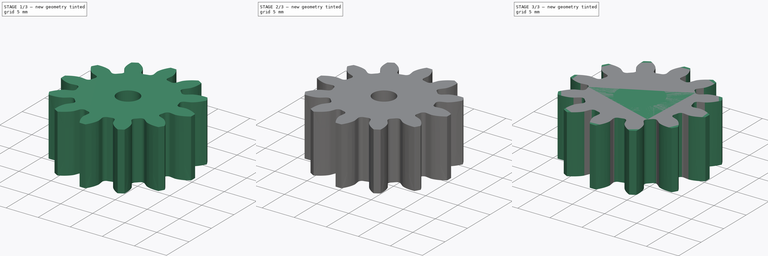
[diagram: build sequence overview — one tinted view per stage of 3, left to right]
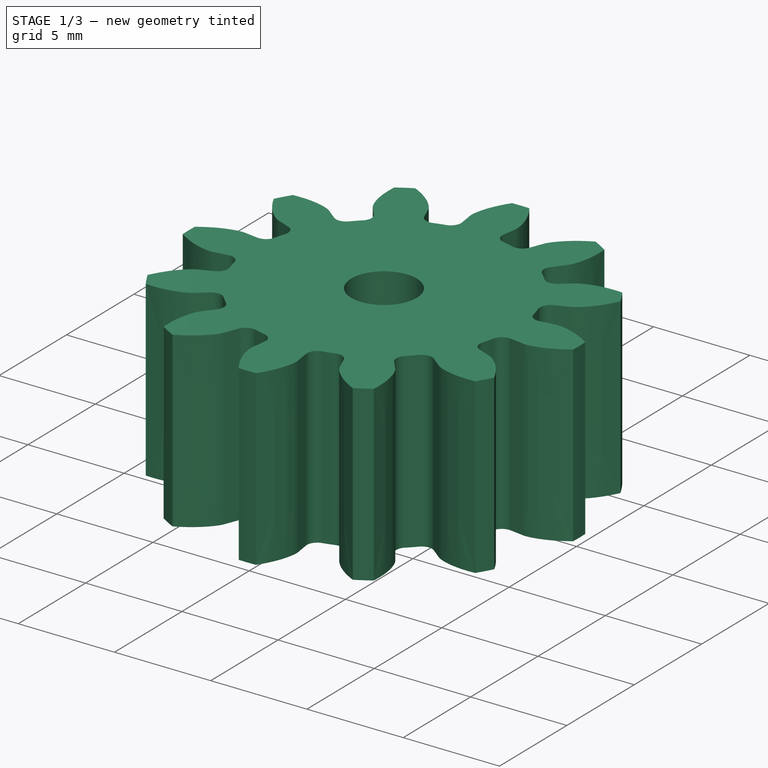
[diagram: stage 1 of 3 — iso view after this stage's code; geometry added in this stage tinted green]
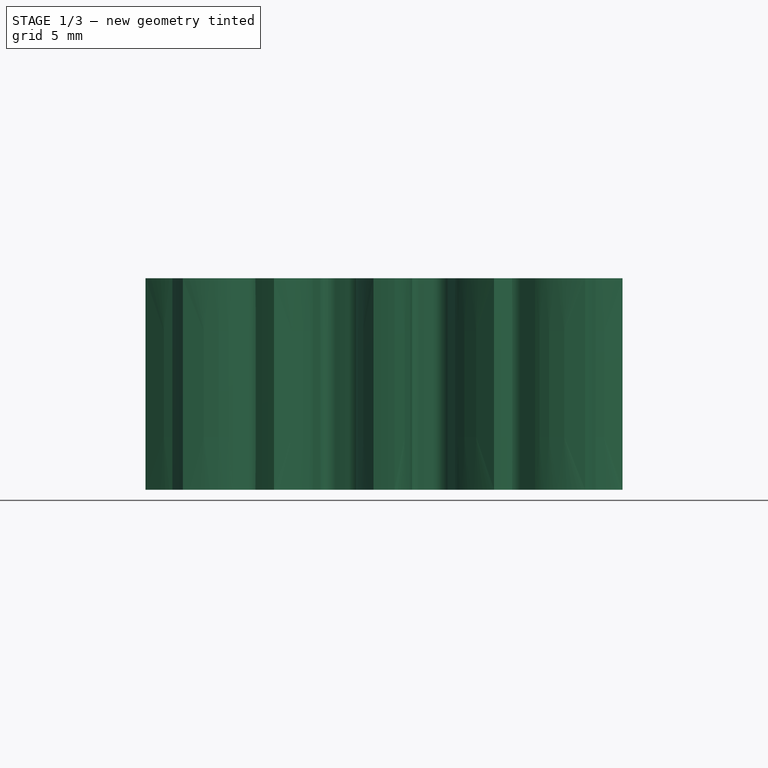
[diagram: stage 1 of 3 — front view after this stage's code; geometry added in this stage tinted green]
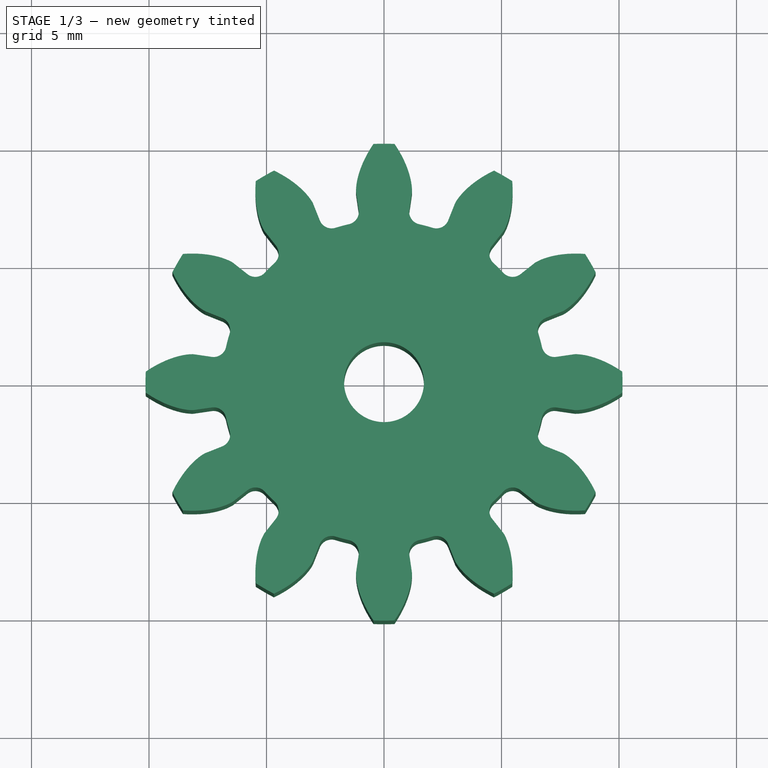
[diagram: stage 1 of 3 — top view after this stage's code; geometry added in this stage tinted green]
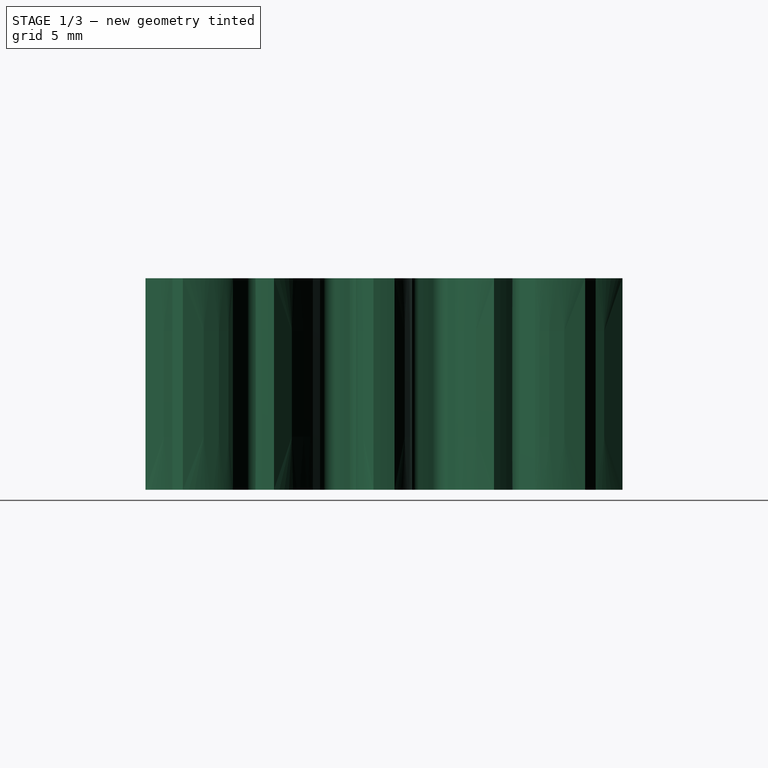
[diagram: stage 1 of 3 — right view after this stage's code; geometry added in this stage tinted green]
FCSTD DOCUMENT  (FreeCAD 0.16R6712 (Git))
Label: SunGearV2_145mod
License: All rights reserved
LicenseURL: http://en.wikipedia.org/wiki/All_rights_reserved
objects: Part::Part2DObjectPython×2, PartDesign::Pad×2, Sketcher::SketchObject×2, PartDesign::Pocket×2, PartDesign::Chamfer×1
note: 13 computed .brp shape members not serialized (recipe doc carries the construction recipe); baked Part::Feature solids carry a one-line shape summary decoded from their .brp

FEATURE [Part::Part2DObjectPython] InvoluteGear001  # Draft 2D object (typed FeaturePython)
  ExternalGear = true
  HighPrecision = false
  Modules = 1.45
  NumberOfTeeth = 12
  PressureAngle = 20
FEATURE [PartDesign::Pad] Pad
  Length = 9
  Length2 = 100
  Reversed = true
  Sketch = -> InvoluteGear001
  Type = 0
FEATURE [Sketcher::SketchObject] Sketch001  label="ScrewHole"
  Placement = pos=(0,0,-9) rot=(1,0,0;3.14159rad)
  Support = -> Pad [Face98]
  sketch-geometry (1):
    g0: Circle CenterX=0 CenterY=0 CenterZ=0 NormalX=0 NormalY=0 NormalZ=1 Radius=1.7
  constraints (2):
    c: Coincident(g0,g-1)
    c: Radius(g0) = 1.7
FEATURE [PartDesign::Pocket] Pocket
  Length = 5
  Sketch = -> Sketch001
  Type = 1
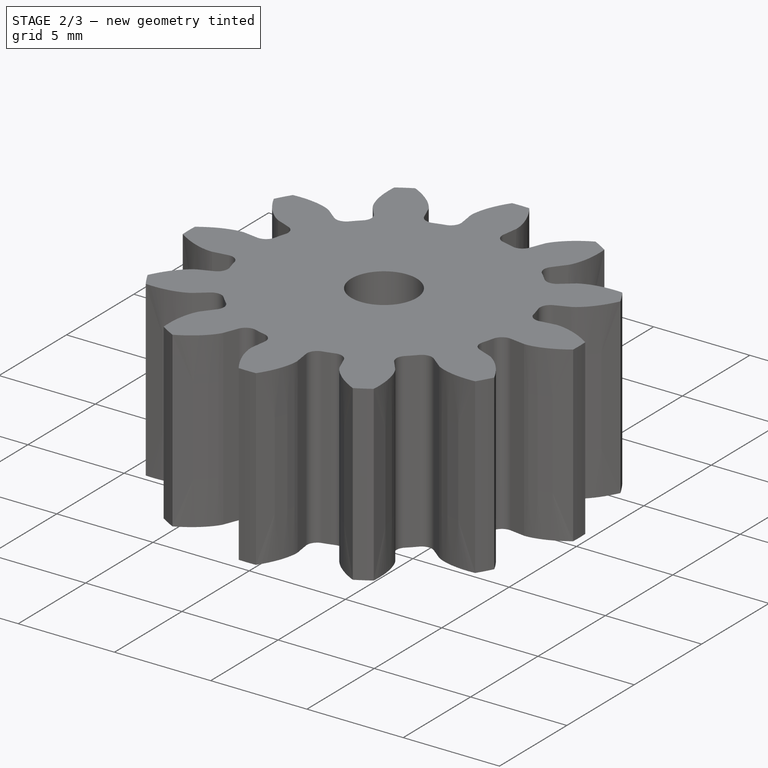
[diagram: stage 2 of 3 — iso view after this stage's code; geometry added in this stage tinted green]
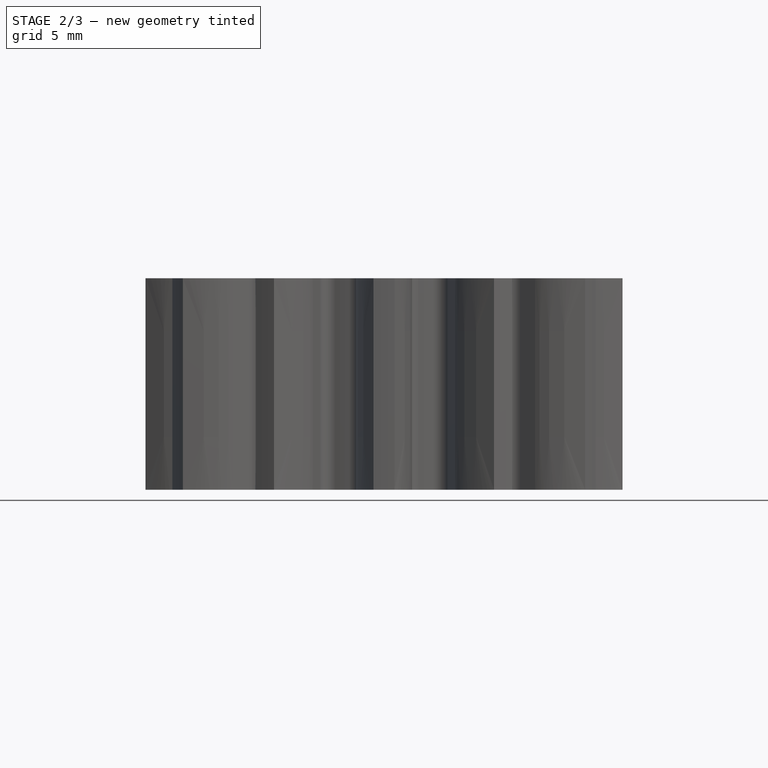
[diagram: stage 2 of 3 — front view after this stage's code; geometry added in this stage tinted green]
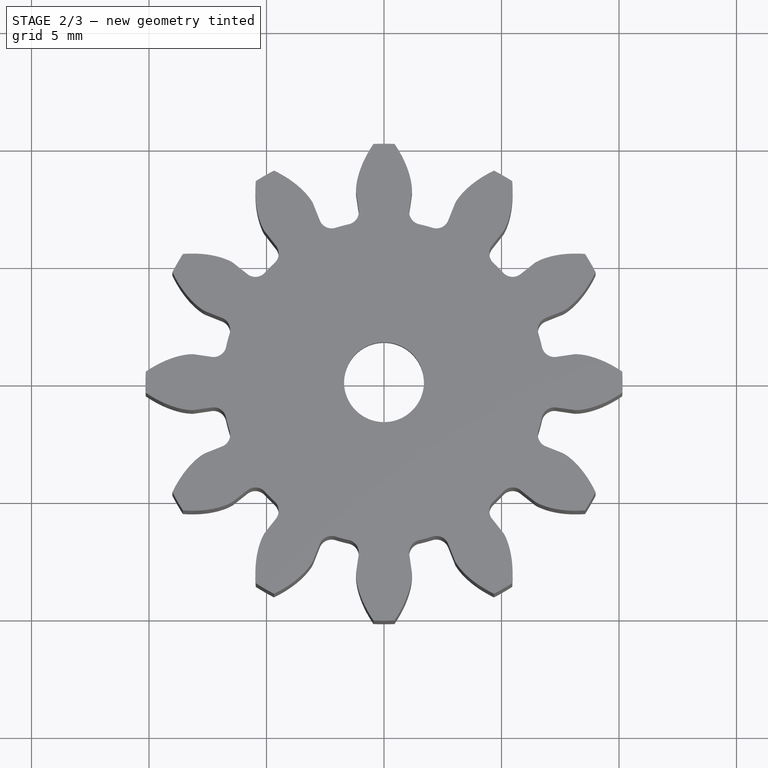
[diagram: stage 2 of 3 — top view after this stage's code; geometry added in this stage tinted green]
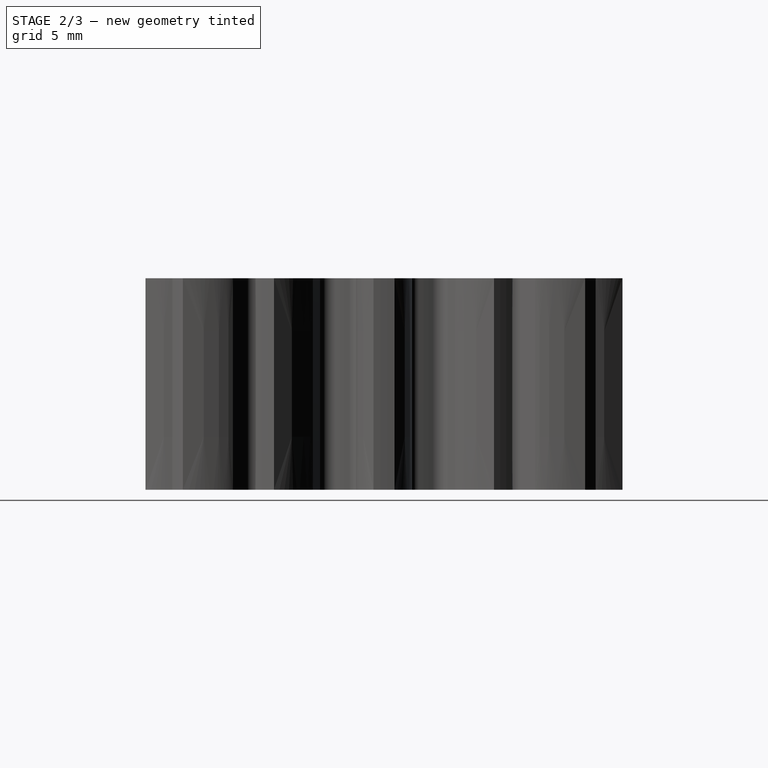
[diagram: stage 2 of 3 — right view after this stage's code; geometry added in this stage tinted green]
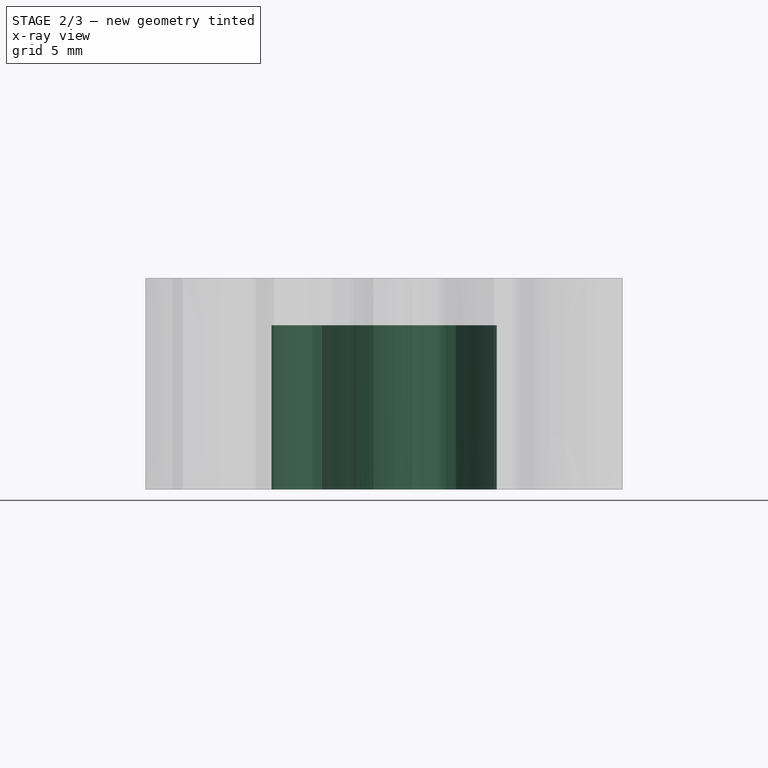
[diagram: stage 2 of 3 — x-ray composite at the front view; earlier geometry ghosted, this stage's added geometry solid]
FEATURE [Sketcher::SketchObject] Sketch005
  Placement = pos=(0,0,-9) rot=(1,0,0;3.14159rad)
  Support = -> Pocket [Face5]
  sketch-geometry (8):
    g0: LineSegment StartX=-3.05778 StartY=3.7 StartZ=0 EndX=-2.63818 EndY=3.7 EndZ=0
    g1: LineSegment StartX=3.05778 StartY=-3.7 StartZ=0 EndX=2.63818 EndY=-3.7 EndZ=0
    g2: ArcOfCircle CenterX=0 CenterY=-6 CenterZ=0 NormalX=0 NormalY=0 NormalZ=1 Radius=3.5 StartAngle=0.717022 EndAngle=2.42457
    g3: ArcOfCircle CenterX=0 CenterY=6 CenterZ=0 NormalX=0 NormalY=0 NormalZ=1 Radius=3.5 StartAngle=3.85861 EndAngle=5.56616
    g4: LineSegment StartX=2.63818 StartY=3.7 StartZ=0 EndX=3.05778 EndY=3.7 EndZ=0
    g5: LineSegment StartX=-2.63818 StartY=-3.7 StartZ=0 EndX=-3.05778 EndY=-3.7 EndZ=0
    g6: ArcOfCircle CenterX=0 CenterY=0 CenterZ=0 NormalX=0 NormalY=0 NormalZ=1 Radius=4.8 StartAngle=5.40304 EndAngle=7.16333
    g7: ArcOfCircle CenterX=0 CenterY=0 CenterZ=0 NormalX=0 NormalY=0 NormalZ=1 Radius=4.8 StartAngle=2.26144 EndAngle=4.02174
  constraints (25):
    c: Horizontal(g0)
    c: Horizontal(g1)
    c: DistanceY(g1,g4) = 7.4
    c: PointOnObject(g2,g-2)
    c: DistanceY(g2,g-1) = 6
    c: Symmetric(g2,g3,g-1)
    c: Tangent(g0,g4)
    c: Tangent(g1,g5)
    c: Coincident(g0,g3)
    c: Coincident(g4,g3)
    c: Coincident(g2,g5)
    c: Coincident(g1,g2)
    c: Coincident(g6,g-1)
    c: Coincident(g7,g-1)
    c: Radius(g6) = 4.8
    c: Equal(g6,g7)
    c: Coincident(g5,g7)
    c: Coincident(g1,g6)
    c: Coincident(g7,g0)
    c: Coincident(g6,g4)
    c: Equal(g5,g0)
    c: Equal(g0,g4)
    c: Equal(g4,g1)
    c: Symmetric(g2,g3,g-1)
    c: Radius(g3) = 3.5
FEATURE [PartDesign::Pocket] Pocket001
  Length = 7
  Sketch = -> Sketch005
  Type = 0
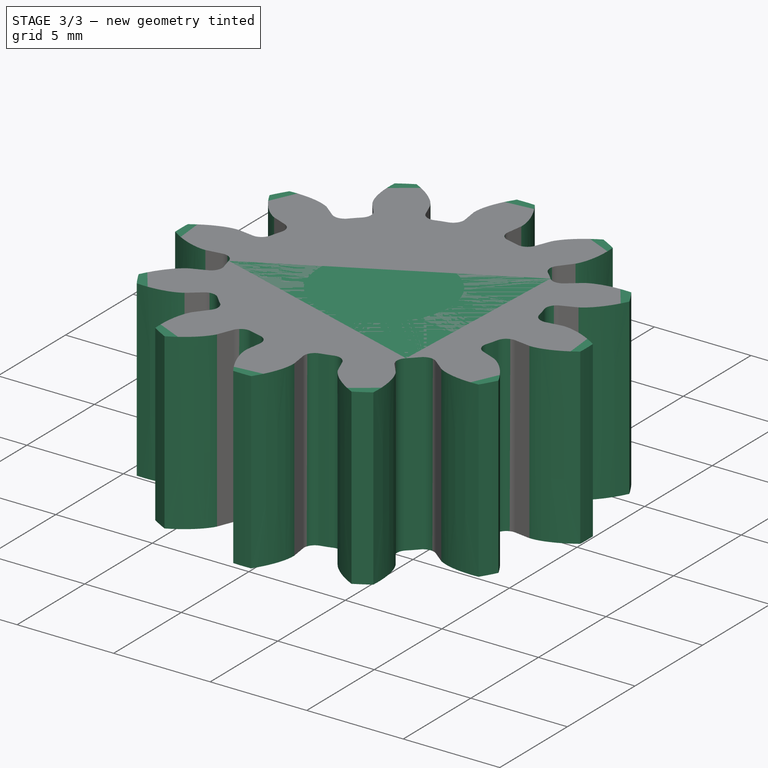
[diagram: stage 3 of 3 — iso view after this stage's code; geometry added in this stage tinted green]
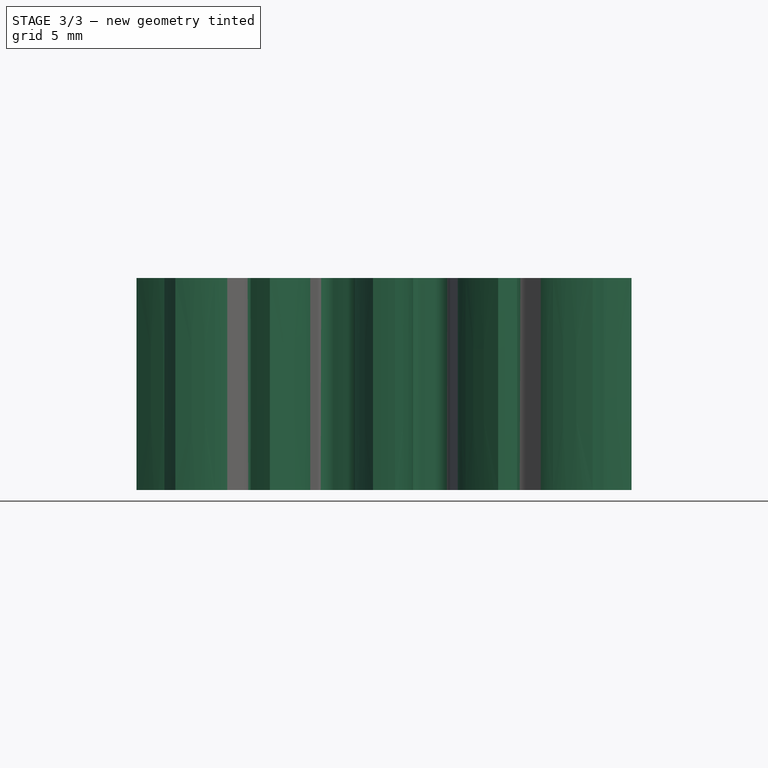
[diagram: stage 3 of 3 — front view after this stage's code; geometry added in this stage tinted green]
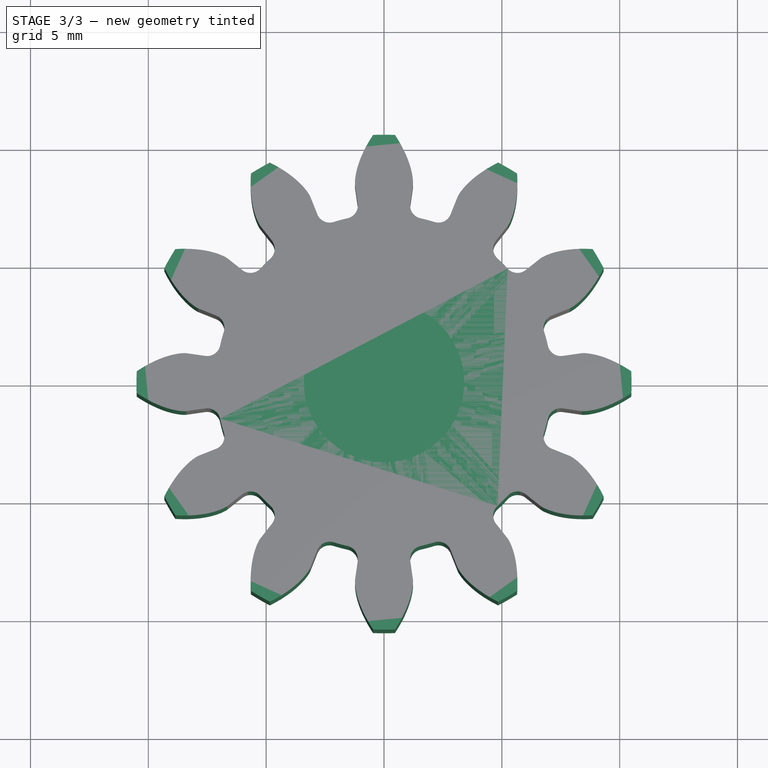
[diagram: stage 3 of 3 — top view after this stage's code; geometry added in this stage tinted green]
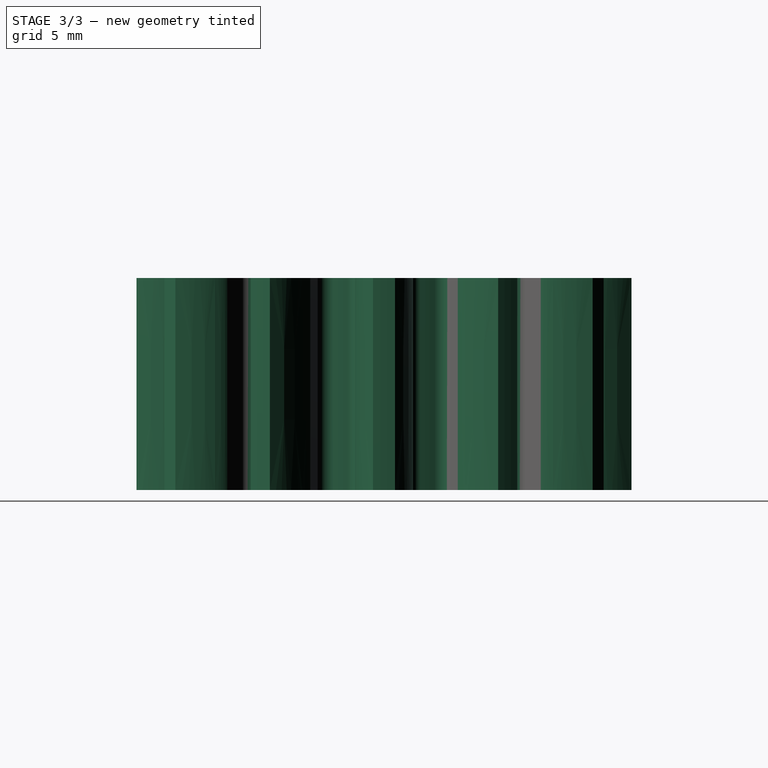
[diagram: stage 3 of 3 — right view after this stage's code; geometry added in this stage tinted green]
FEATURE [Part::Part2DObjectPython] InvoluteGear  # Draft 2D object (typed FeaturePython)
  ExternalGear = true
  HighPrecision = true
  Modules = 1.45
  NumberOfTeeth = 12
  PressureAngle = 20
FEATURE [PartDesign::Pad] Pad001
  Length = 9
  Length2 = 100
  Reversed = true
  Sketch = -> InvoluteGear
  Type = 0
FEATURE [PartDesign::Chamfer] Chamfer
  Base = -> Pocket001 [Edge128]
  Size = 1.7
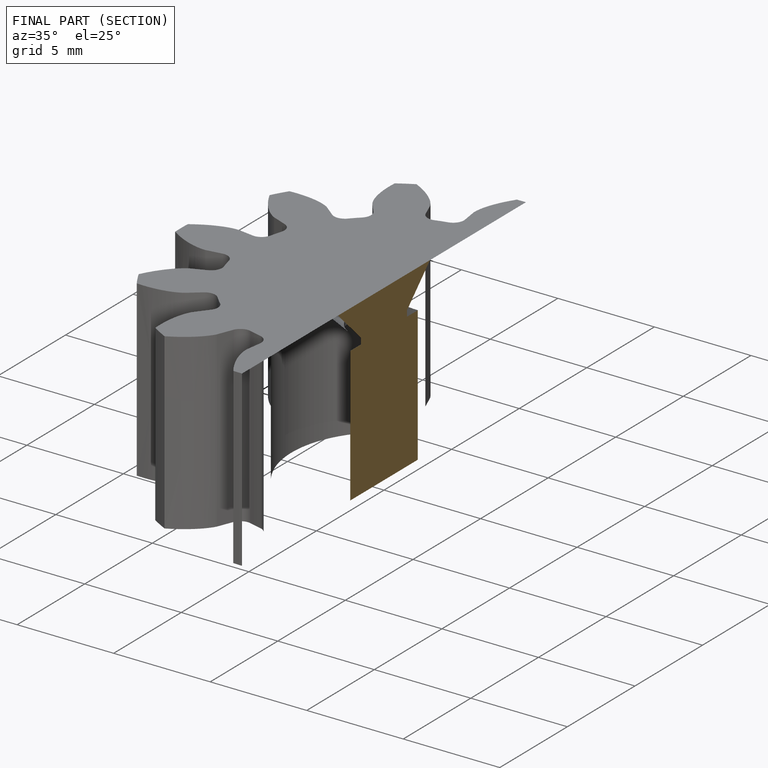
[diagram: finished part — half-section view (interior)]
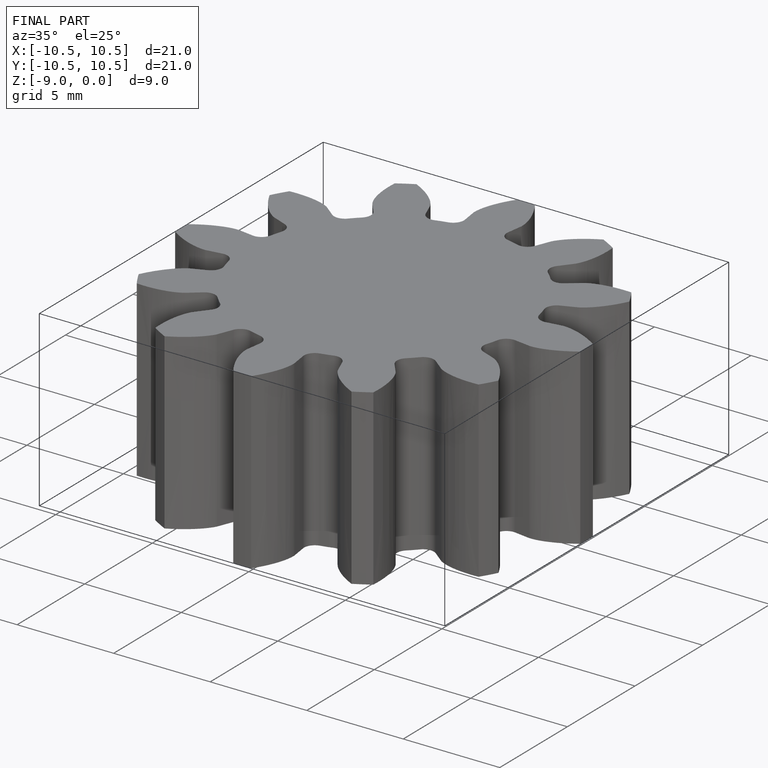
[diagram: finished part — iso view with bounding-box wireframe]
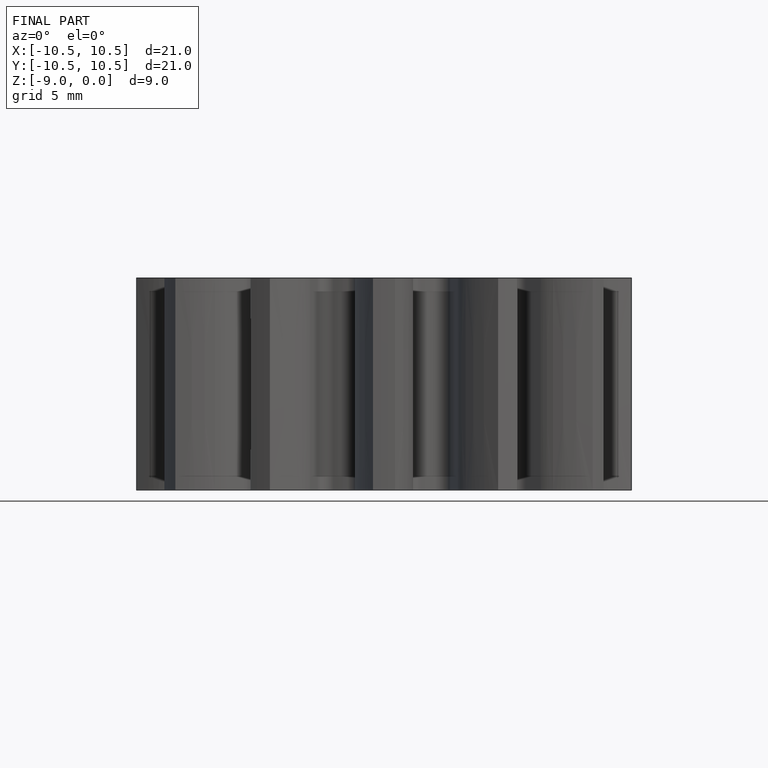
[diagram: finished part — front view with bounding-box wireframe]
